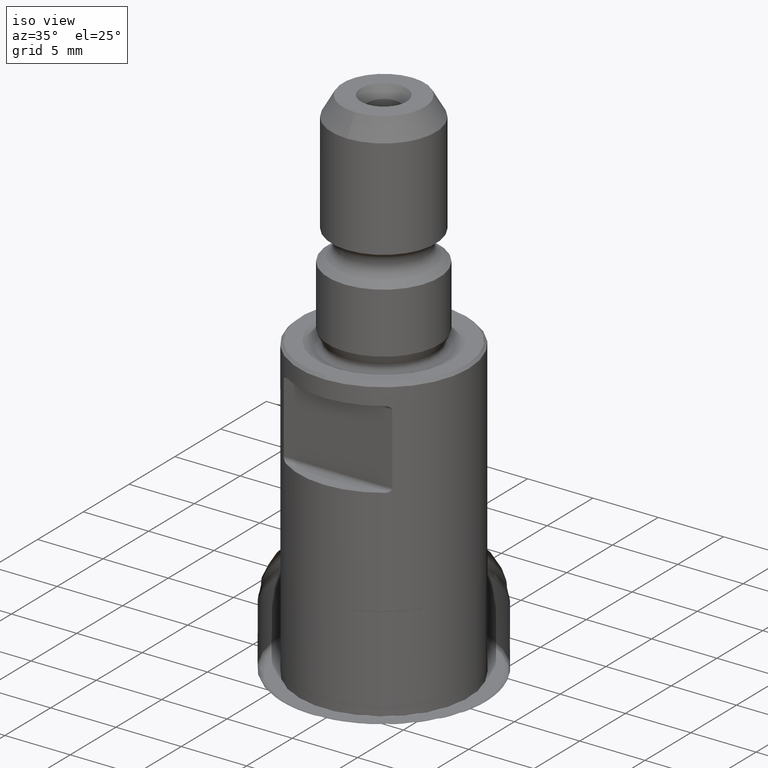
[diagram: clean part render]
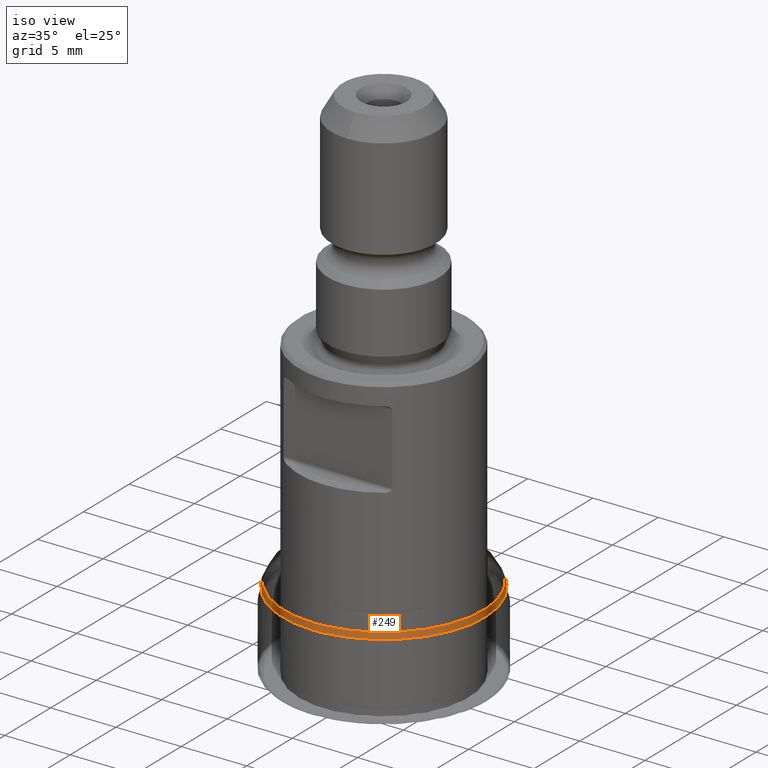
[diagram: same view with one face highlighted and labeled with its STEP entity id]
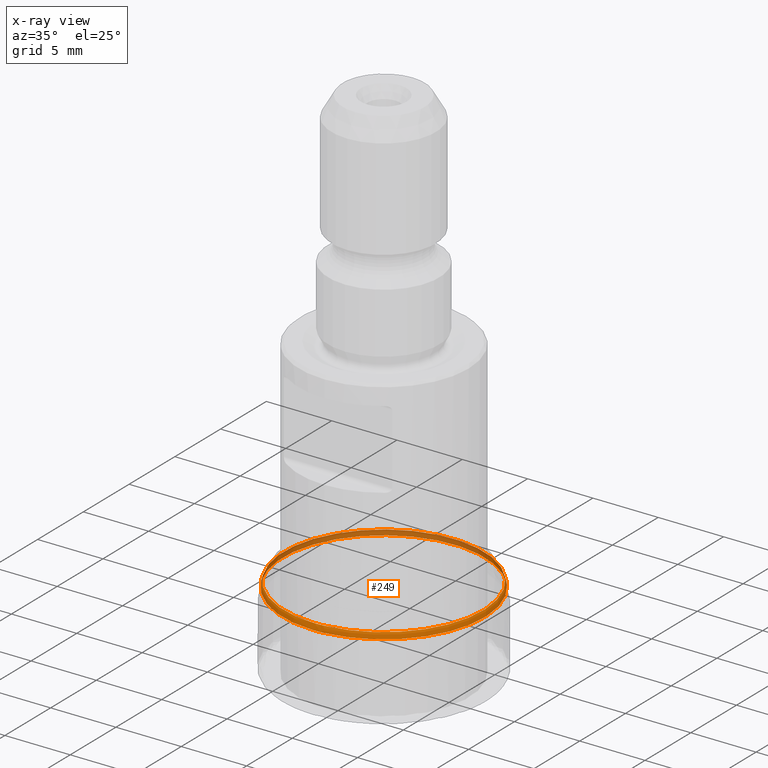
[diagram: x-ray of the same camera — body ghosted, the highlighted face saturated]
A machine part, iso view. The second image highlights one B-rep face of the part: STEP entity #249.
The next image is the same camera in x-ray: the body ghosted, the highlighted face saturated — about 36% of this face is hidden behind the body in this view.
In plain terms, the highlighted face is a SurfaceOfRevolution surface.
Its self-contained STEP definition (entity closure, byte-faithful):
#112=SURFACE_OF_REVOLUTION('',#747,#133);
#133=AXIS1_PLACEMENT('',#1516,#953);
#249=ADVANCED_FACE('',(#317,#318),#112,.F.);
#317=FACE_BOUND('',#403,.T.);
#318=FACE_BOUND('',#404,.T.);
#403=EDGE_LOOP('',(#525));
#404=EDGE_LOOP('',(#526));
#525=ORIENTED_EDGE('',*,*,#657,.T.);
#526=ORIENTED_EDGE('',*,*,#658,.F.);
#596=VERTEX_POINT('',#1504);
#597=VERTEX_POINT('',#1508);
#657=EDGE_CURVE('',#596,#596,#698,.T.);
#658=EDGE_CURVE('',#597,#597,#699,.T.);
#698=CIRCLE('',#811,7.623643193272);
#699=CIRCLE('',#812,7.73269945765946);
#747=B_SPLINE_CURVE_WITH_KNOTS('',3,(#1509,#1510,#1511,#1512,#1513,#1514,
#1515),.UNSPECIFIED.,.F.,.F.,(4,1,1,1,4),(0.,0.25,0.5,0.75,1.),
 .UNSPECIFIED.);
#811=AXIS2_PLACEMENT_3D('',#1503,#947,#948);
#812=AXIS2_PLACEMENT_3D('',#1507,#951,#952);
#947=DIRECTION('',(0.,1.17145536458252E-15,1.));
#948=DIRECTION('',(0.,-1.,1.13772603989896E-15));
#951=DIRECTION('',(0.,1.17145536458252E-15,1.));
#952=DIRECTION('',(0.,-1.,1.12168039471553E-15));
#953=DIRECTION('',(0.,1.17145536458252E-15,1.));
#1503=CARTESIAN_POINT('',(0.,7.45440109368154E-15,6.36336758450724));
#1504=CARTESIAN_POINT('',(0.,-7.62364319327199,6.36336758450725));
#1507=CARTESIAN_POINT('',(0.,6.92472286997795E-15,5.91121358895799));
#1508=CARTESIAN_POINT('',(0.,-7.73269945765945,5.911213588958));
#1509=CARTESIAN_POINT('',(7.72261597025551,-0.394770158991817,5.91121358896508));
#1510=CARTESIAN_POINT('',(7.72425632008957,-0.399077282097858,5.94942908797421));
#1511=CARTESIAN_POINT('',(7.72263220847755,-0.403984277976523,6.02769456145849));
#1512=CARTESIAN_POINT('',(7.70356169792349,-0.402345404284879,6.14610015022467));
#1513=CARTESIAN_POINT('',(7.66758495537145,-0.393548475338869,6.26041308995741));
#1514=CARTESIAN_POINT('',(7.6333878422594,-0.383757076781714,6.33053592695017));
#1515=CARTESIAN_POINT('',(7.61426797150052,-0.377966660571877,6.36336758450724));
#1516=CARTESIAN_POINT('',(0.,0.,0.));